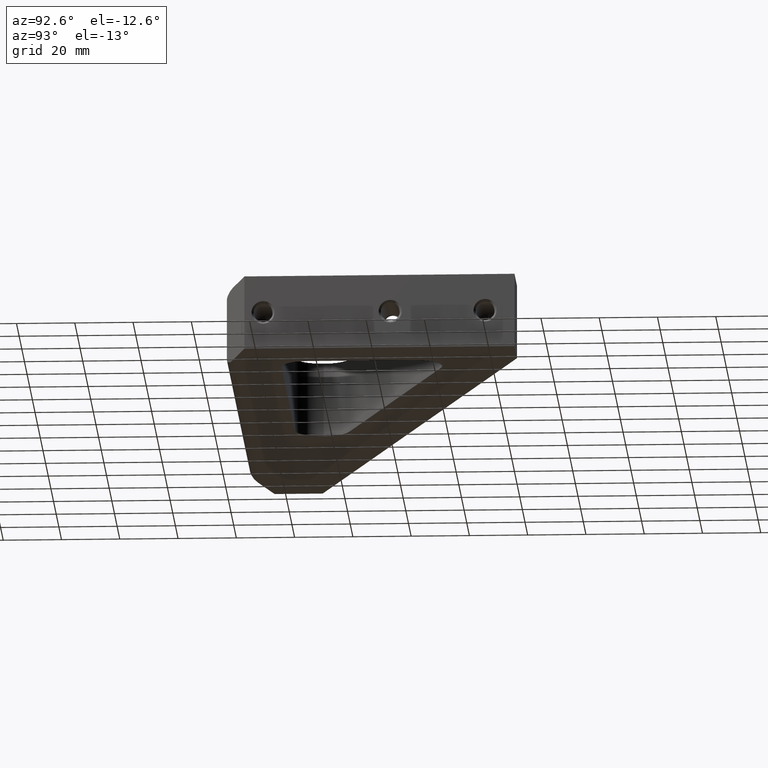
[diagram: clean part render]
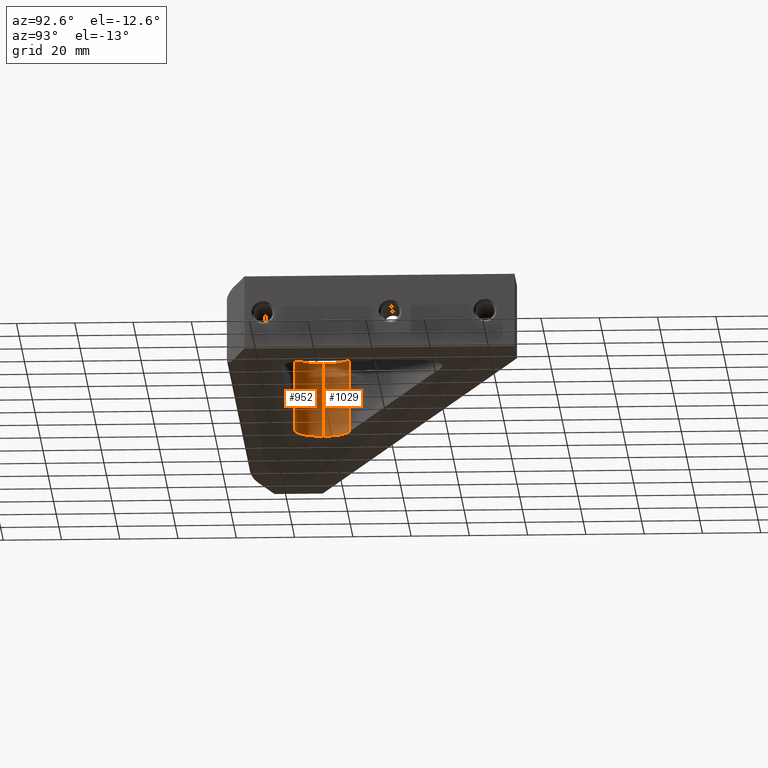
[diagram: same view with one multi-face feature highlighted, each face labeled with its STEP entity id]
A machine part, auxiliary view. The highlighted faces form ONE feature: a constant-radius fillet chain: 2 tangent blend faces with common blend radius 9.525 mm. The faces share edges in the B-rep.
Their STEP definitions:
[1] entity #1029 (Cylinder):
#52 = VERTEX_POINT ( 'NONE', #1105 ) ;
#62 = DIRECTION ( 'NONE',  ( -0.0000000000000000000, -0.0000000000000000000, -1.000000000000000000 ) ) ;
#84 = CARTESIAN_POINT ( 'NONE',  ( -5.455494401226113500, -0.9275000000000001000, 0.5000000000000000000 ) ) ;
#86 = VECTOR ( 'NONE', #367, 39.37007874015748100 ) ;
#90 = DIRECTION ( 'NONE',  ( -0.0000000000000000000, -0.0000000000000000000, -1.000000000000000000 ) ) ;
#114 = AXIS2_PLACEMENT_3D ( 'NONE', #630, #631, #636 ) ;
#115 = CARTESIAN_POINT ( 'NONE',  ( -5.455494401226113500, -0.9275000000000001000, -0.5000000000000000000 ) ) ;
#133 = FACE_OUTER_BOUND ( 'NONE', #341, .T. ) ;
#147 = ORIENTED_EDGE ( 'NONE', *, *, #560, .T. ) ;
#159 = LINE ( 'NONE', #904, #86 ) ;
#175 = CYLINDRICAL_SURFACE ( 'NONE', #624, 0.3750000000000002200 ) ;
#179 = CARTESIAN_POINT ( 'NONE',  ( -5.208648049883626300, -0.5750774661918363100, -0.5000000000000000000 ) ) ;
#280 = CARTESIAN_POINT ( 'NONE',  ( -5.455494401226113500, -0.9275000000000001000, 0.5000000000000000000 ) ) ;
#297 = EDGE_CURVE ( 'NONE', #855, #443, #802, .T. ) ;
#298 = ORIENTED_EDGE ( 'NONE', *, *, #853, .T. ) ;
#318 = ORIENTED_EDGE ( 'NONE', *, *, #297, .F. ) ;
#341 = EDGE_LOOP ( 'NONE', ( #147, #298, #318, #1053 ) ) ;
#367 = DIRECTION ( 'NONE',  ( -0.0000000000000000000, -0.0000000000000000000, -1.000000000000000000 ) ) ;
#392 = CARTESIAN_POINT ( 'NONE',  ( -5.080494401226112600, -0.9275000000000001000, -0.5000000000000000000 ) ) ;
#443 = VERTEX_POINT ( 'NONE', #115 ) ;
#459 = DIRECTION ( 'NONE',  ( 0.0000000000000000000, 0.0000000000000000000, 1.000000000000000000 ) ) ;
#462 = DIRECTION ( 'NONE',  ( -1.000000000000000000, 0.0000000000000000000, 0.0000000000000000000 ) ) ;
#560 = EDGE_CURVE ( 'NONE', #52, #836, #626, .T. ) ;
#612 = DIRECTION ( 'NONE',  ( -1.000000000000000000, 0.0000000000000000000, 0.0000000000000000000 ) ) ;
#624 = AXIS2_PLACEMENT_3D ( 'NONE', #697, #62, #612 ) ;
#626 = CIRCLE ( 'NONE', #114, 0.3750000000000002200 ) ;
#630 = CARTESIAN_POINT ( 'NONE',  ( -5.080494401226112600, -0.9275000000000001000, 0.5000000000000000000 ) ) ;
#631 = DIRECTION ( 'NONE',  ( 0.0000000000000000000, 0.0000000000000000000, 1.000000000000000000 ) ) ;
#636 = DIRECTION ( 'NONE',  ( -1.000000000000000000, 0.0000000000000000000, 0.0000000000000000000 ) ) ;
#697 = CARTESIAN_POINT ( 'NONE',  ( -5.080494401226112600, -0.9275000000000001000, 0.5000000000000000000 ) ) ;
#802 = CIRCLE ( 'NONE', #817, 0.3750000000000002200 ) ;
#817 = AXIS2_PLACEMENT_3D ( 'NONE', #392, #459, #462 ) ;
#836 = VERTEX_POINT ( 'NONE', #280 ) ;
#853 = EDGE_CURVE ( 'NONE', #836, #443, #1095, .T. ) ;
#855 = VERTEX_POINT ( 'NONE', #179 ) ;
#890 = VECTOR ( 'NONE', #90, 39.37007874015748100 ) ;
#904 = CARTESIAN_POINT ( 'NONE',  ( -5.208648049883626300, -0.5750774661918363100, 0.5000000000000000000 ) ) ;
#993 = EDGE_CURVE ( 'NONE', #52, #855, #159, .T. ) ;
#1029 = ADVANCED_FACE ( 'NONE', ( #133 ), #175, .F. ) ;
#1053 = ORIENTED_EDGE ( 'NONE', *, *, #993, .F. ) ;
#1095 = LINE ( 'NONE', #84, #890 ) ;
#1105 = CARTESIAN_POINT ( 'NONE',  ( -5.208648049883626300, -0.5750774661918363100, 0.5000000000000000000 ) ) ;
[2] entity #952 (Cylinder):
#2 = ORIENTED_EDGE ( 'NONE', *, *, #717, .F. ) ;
#10 = DIRECTION ( 'NONE',  ( -1.000000000000000000, 0.0000000000000000000, 0.0000000000000000000 ) ) ;
#42 = ORIENTED_EDGE ( 'NONE', *, *, #587, .T. ) ;
#84 = CARTESIAN_POINT ( 'NONE',  ( -5.455494401226113500, -0.9275000000000001000, 0.5000000000000000000 ) ) ;
#90 = DIRECTION ( 'NONE',  ( -0.0000000000000000000, -0.0000000000000000000, -1.000000000000000000 ) ) ;
#115 = CARTESIAN_POINT ( 'NONE',  ( -5.455494401226113500, -0.9275000000000001000, -0.5000000000000000000 ) ) ;
#200 = CYLINDRICAL_SURFACE ( 'NONE', #563, 0.3750000000000002200 ) ;
#205 = CARTESIAN_POINT ( 'NONE',  ( -5.080494401226112600, -0.9275000000000001000, 0.5000000000000000000 ) ) ;
#280 = CARTESIAN_POINT ( 'NONE',  ( -5.455494401226113500, -0.9275000000000001000, 0.5000000000000000000 ) ) ;
#299 = EDGE_CURVE ( 'NONE', #836, #1070, #772, .T. ) ;
#339 = DIRECTION ( 'NONE',  ( -1.000000000000000000, 0.0000000000000000000, 0.0000000000000000000 ) ) ;
#373 = AXIS2_PLACEMENT_3D ( 'NONE', #893, #899, #901 ) ;
#412 = CARTESIAN_POINT ( 'NONE',  ( -5.080494401226112600, -1.302500000000000200, -0.5000000000000000000 ) ) ;
#443 = VERTEX_POINT ( 'NONE', #115 ) ;
#445 = EDGE_LOOP ( 'NONE', ( #669, #1025, #42, #2 ) ) ;
#508 = VERTEX_POINT ( 'NONE', #412 ) ;
#563 = AXIS2_PLACEMENT_3D ( 'NONE', #205, #583, #339 ) ;
#582 = VECTOR ( 'NONE', #639, 39.37007874015748100 ) ;
#583 = DIRECTION ( 'NONE',  ( -0.0000000000000000000, -0.0000000000000000000, -1.000000000000000000 ) ) ;
#587 = EDGE_CURVE ( 'NONE', #1070, #508, #648, .T. ) ;
#639 = DIRECTION ( 'NONE',  ( -0.0000000000000000000, -0.0000000000000000000, -1.000000000000000000 ) ) ;
#642 = CARTESIAN_POINT ( 'NONE',  ( -5.080494401226112600, -1.302500000000000200, 0.5000000000000000000 ) ) ;
#648 = LINE ( 'NONE', #642, #582 ) ;
#651 = CIRCLE ( 'NONE', #373, 0.3750000000000002200 ) ;
#666 = FACE_OUTER_BOUND ( 'NONE', #445, .T. ) ;
#669 = ORIENTED_EDGE ( 'NONE', *, *, #853, .F. ) ;
#717 = EDGE_CURVE ( 'NONE', #443, #508, #651, .T. ) ;
#772 = CIRCLE ( 'NONE', #841, 0.3750000000000002200 ) ;
#818 = CARTESIAN_POINT ( 'NONE',  ( -5.080494401226112600, -0.9275000000000001000, 0.5000000000000000000 ) ) ;
#836 = VERTEX_POINT ( 'NONE', #280 ) ;
#841 = AXIS2_PLACEMENT_3D ( 'NONE', #818, #965, #10 ) ;
#853 = EDGE_CURVE ( 'NONE', #836, #443, #1095, .T. ) ;
#890 = VECTOR ( 'NONE', #90, 39.37007874015748100 ) ;
#893 = CARTESIAN_POINT ( 'NONE',  ( -5.080494401226112600, -0.9275000000000001000, -0.5000000000000000000 ) ) ;
#899 = DIRECTION ( 'NONE',  ( 0.0000000000000000000, 0.0000000000000000000, 1.000000000000000000 ) ) ;
#901 = DIRECTION ( 'NONE',  ( -1.000000000000000000, 0.0000000000000000000, 0.0000000000000000000 ) ) ;
#952 = ADVANCED_FACE ( 'NONE', ( #666 ), #200, .F. ) ;
#965 = DIRECTION ( 'NONE',  ( 0.0000000000000000000, 0.0000000000000000000, 1.000000000000000000 ) ) ;
#1025 = ORIENTED_EDGE ( 'NONE', *, *, #299, .T. ) ;
#1070 = VERTEX_POINT ( 'NONE', #1079 ) ;
#1079 = CARTESIAN_POINT ( 'NONE',  ( -5.080494401226112600, -1.302500000000000200, 0.5000000000000000000 ) ) ;
#1095 = LINE ( 'NONE', #84, #890 ) ;